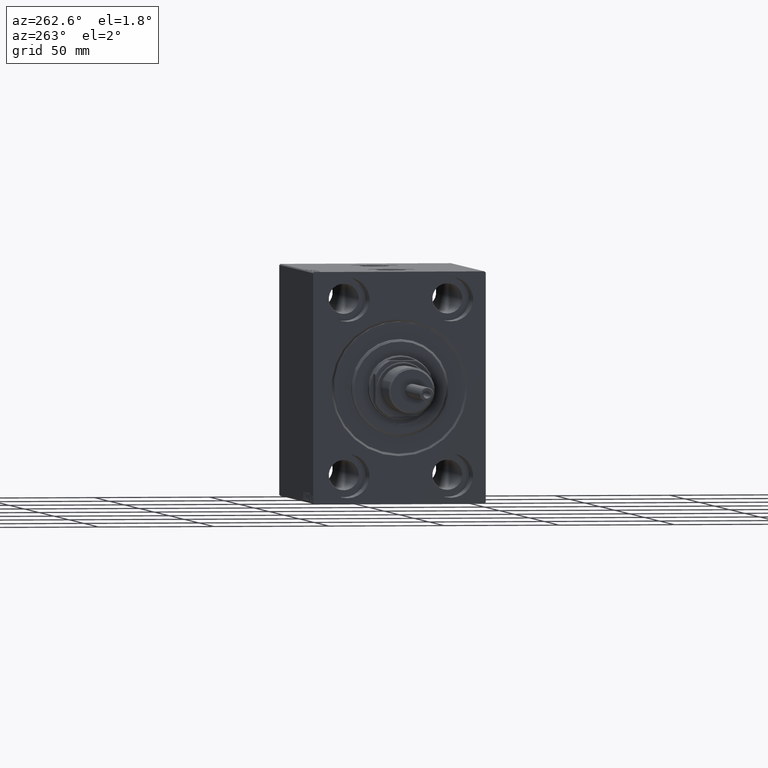
[diagram: clean part render]
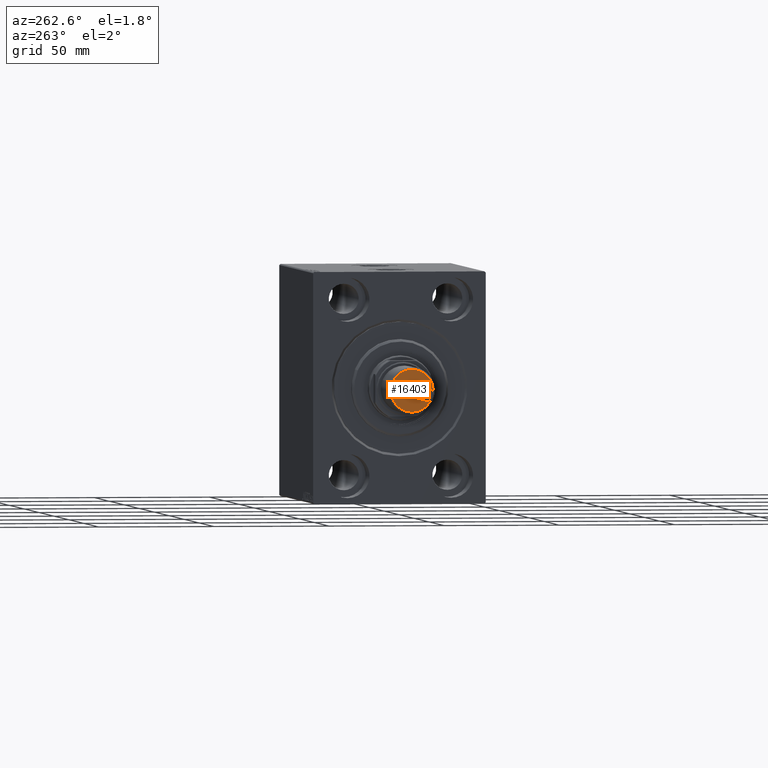
[diagram: same view with one face highlighted and labeled with its STEP entity id]
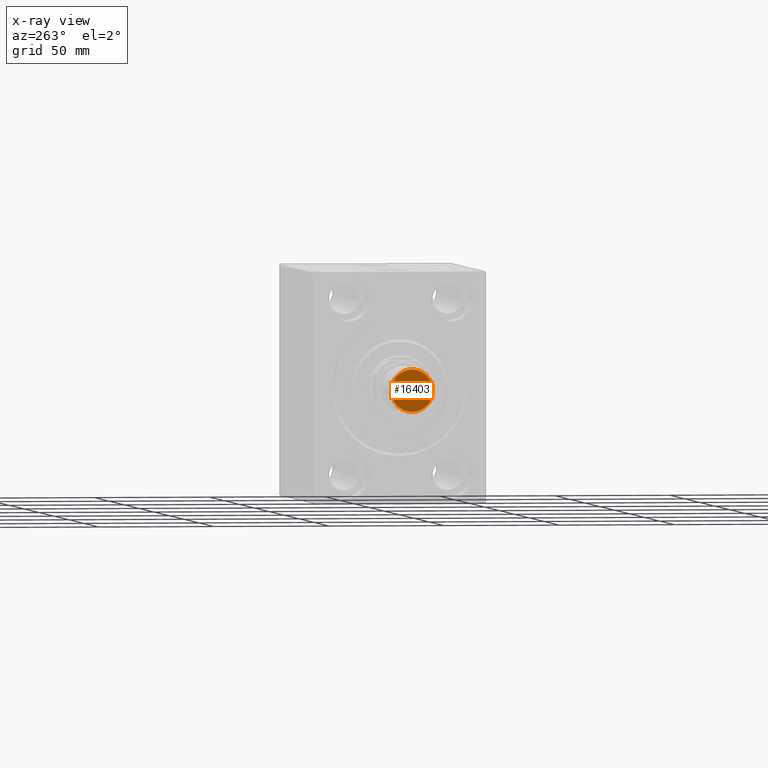
[diagram: x-ray of the same camera — body ghosted, the highlighted face saturated]
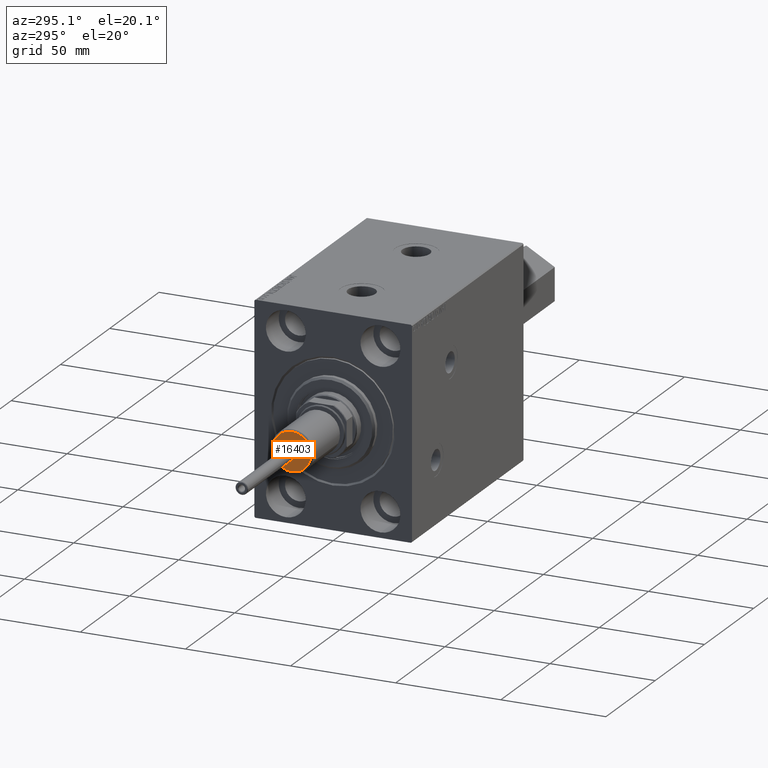
[diagram: same view with one face highlighted and labeled with its STEP entity id]
A machine part, auxiliary view. The second image highlights one B-rep face of the part: STEP entity #16403.
The next image is the same camera in x-ray: the body ghosted, the highlighted face saturated — about 14% of this face is hidden behind the body in this view.
A second angle (auxiliary view) of the same face is appended — the face is thin or edge-on in the first view.
In plain terms, the highlighted planar face has unit normal (1, -0, -0).
Its self-contained STEP definition (entity closure, byte-faithful):
#250 = AXIS2_PLACEMENT_3D ( 'NONE', #17081, #13491, #19952 ) ;
#507 = VERTEX_POINT ( 'NONE', #15956 ) ;
#529 = CARTESIAN_POINT ( 'NONE',  ( -2.999999999999999556, 0.000000000000000000, 0.000000000000000000 ) ) ;
#2553 = ORIENTED_EDGE ( 'NONE', *, *, #6282, .T. ) ;
#6282 = EDGE_CURVE ( 'NONE', #43022, #507, #36828, .T. ) ;
#6827 = CARTESIAN_POINT ( 'NONE',  ( 0.000000000000000000, 0.000000000000000000, 0.000000000000000000 ) ) ;
#7914 = ORIENTED_EDGE ( 'NONE', *, *, #15834, .T. ) ;
#8954 = EDGE_CURVE ( 'NONE', #26565, #35998, #30026, .T. ) ;
#13491 = DIRECTION ( 'NONE',  ( 0.000000000000000000, 0.000000000000000000, 1.000000000000000000 ) ) ;
#15834 = EDGE_CURVE ( 'NONE', #35998, #26565, #17927, .T. ) ;
#15956 = CARTESIAN_POINT ( 'NONE',  ( -9.199999999999995737, 1.175660927181458645E-15, 0.000000000000000000 ) ) ;
#16403 = ADVANCED_FACE ( 'NONE', ( #39572, #20937 ), #35057, .F. ) ;
#16503 = EDGE_CURVE ( 'NONE', #507, #43022, #45415, .T. ) ;
#16749 = ORIENTED_EDGE ( 'NONE', *, *, #8954, .T. ) ;
#17081 = CARTESIAN_POINT ( 'NONE',  ( 0.000000000000000000, 0.000000000000000000, 0.000000000000000000 ) ) ;
#17927 = CIRCLE ( 'NONE', #30128, 2.999999999999999556 ) ;
#18982 = EDGE_LOOP ( 'NONE', ( #2553, #45750 ) ) ;
#19071 = CARTESIAN_POINT ( 'NONE',  ( 2.999999999999999556, 3.673940397442059375E-16, 0.000000000000000000 ) ) ;
#19952 = DIRECTION ( 'NONE',  ( 1.000000000000000000, 0.000000000000000000, 0.000000000000000000 ) ) ;
#20088 = EDGE_LOOP ( 'NONE', ( #7914, #16749 ) ) ;
#20702 = DIRECTION ( 'NONE',  ( 1.000000000000000000, 0.000000000000000000, 0.000000000000000000 ) ) ;
#20937 = FACE_OUTER_BOUND ( 'NONE', #18982, .T. ) ;
#21406 = DIRECTION ( 'NONE',  ( 0.000000000000000000, 0.000000000000000000, 1.000000000000000000 ) ) ;
#22574 = CARTESIAN_POINT ( 'NONE',  ( 0.000000000000000000, 0.000000000000000000, 0.000000000000000000 ) ) ;
#23102 = AXIS2_PLACEMENT_3D ( 'NONE', #24994, #39562, #35973 ) ;
#24820 = AXIS2_PLACEMENT_3D ( 'NONE', #46965, #43159, #20702 ) ;
#24994 = CARTESIAN_POINT ( 'NONE',  ( 0.000000000000000000, 0.000000000000000000, 0.000000000000000000 ) ) ;
#26565 = VERTEX_POINT ( 'NONE', #19071 ) ;
#30026 = CIRCLE ( 'NONE', #250, 2.999999999999999556 ) ;
#30128 = AXIS2_PLACEMENT_3D ( 'NONE', #22574, #45020, #44784 ) ;
#35057 = PLANE ( 'NONE',  #36279 ) ;
#35973 = DIRECTION ( 'NONE',  ( 1.000000000000000000, 0.000000000000000000, 0.000000000000000000 ) ) ;
#35998 = VERTEX_POINT ( 'NONE', #529 ) ;
#36279 = AXIS2_PLACEMENT_3D ( 'NONE', #6827, #21406, #46265 ) ;
#36828 = CIRCLE ( 'NONE', #23102, 9.199999999999995737 ) ;
#37606 = CARTESIAN_POINT ( 'NONE',  ( 9.199999999999995737, 0.000000000000000000, 0.000000000000000000 ) ) ;
#39562 = DIRECTION ( 'NONE',  ( -0.000000000000000000, -0.000000000000000000, -1.000000000000000000 ) ) ;
#39572 = FACE_BOUND ( 'NONE', #20088, .T. ) ;
#43022 = VERTEX_POINT ( 'NONE', #37606 ) ;
#43159 = DIRECTION ( 'NONE',  ( -0.000000000000000000, -0.000000000000000000, -1.000000000000000000 ) ) ;
#44784 = DIRECTION ( 'NONE',  ( 1.000000000000000000, 0.000000000000000000, 0.000000000000000000 ) ) ;
#45020 = DIRECTION ( 'NONE',  ( 0.000000000000000000, 0.000000000000000000, 1.000000000000000000 ) ) ;
#45415 = CIRCLE ( 'NONE', #24820, 9.199999999999995737 ) ;
#45750 = ORIENTED_EDGE ( 'NONE', *, *, #16503, .T. ) ;
#46265 = DIRECTION ( 'NONE',  ( 1.000000000000000000, 0.000000000000000000, -0.000000000000000000 ) ) ;
#46965 = CARTESIAN_POINT ( 'NONE',  ( 0.000000000000000000, 0.000000000000000000, 0.000000000000000000 ) ) ;